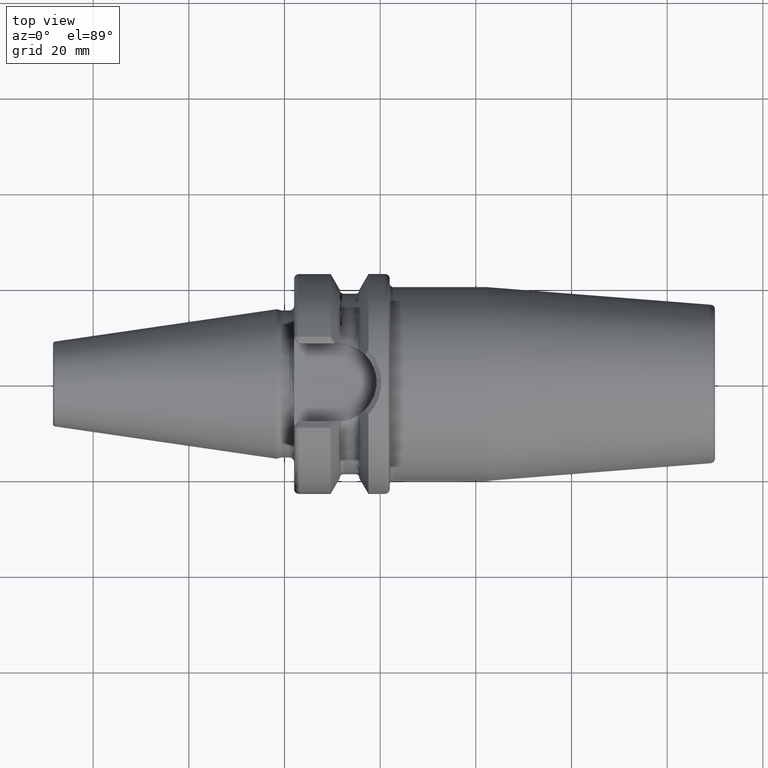
[diagram: clean part render]
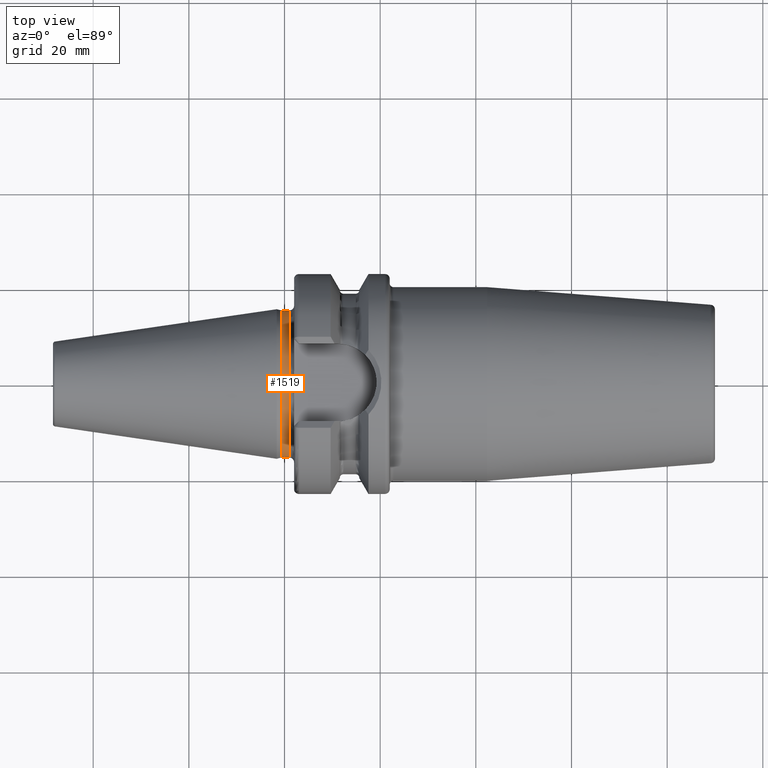
[diagram: same view with one face highlighted and labeled with its STEP entity id]
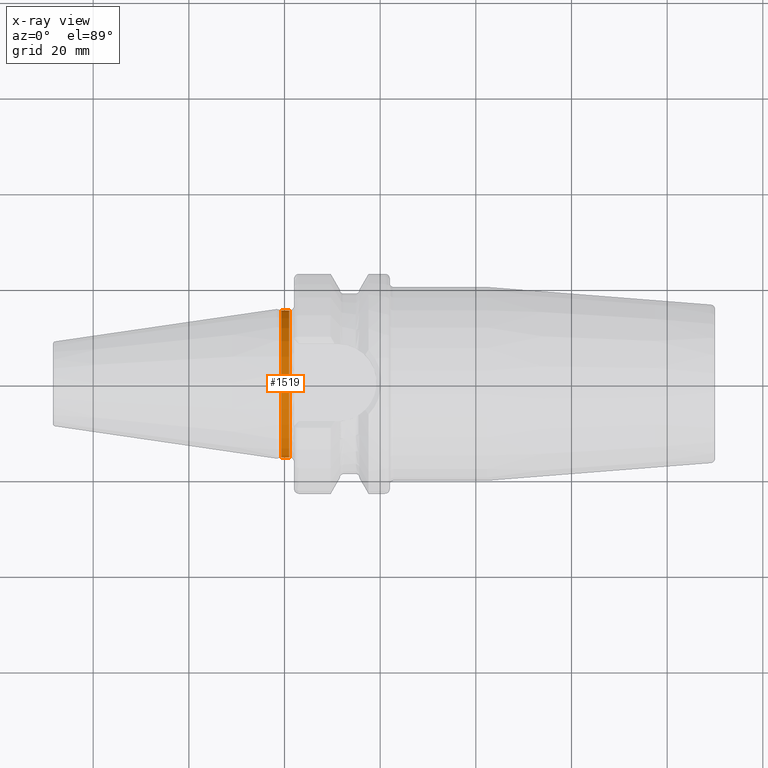
[diagram: x-ray of the same camera — body ghosted, the highlighted face saturated]
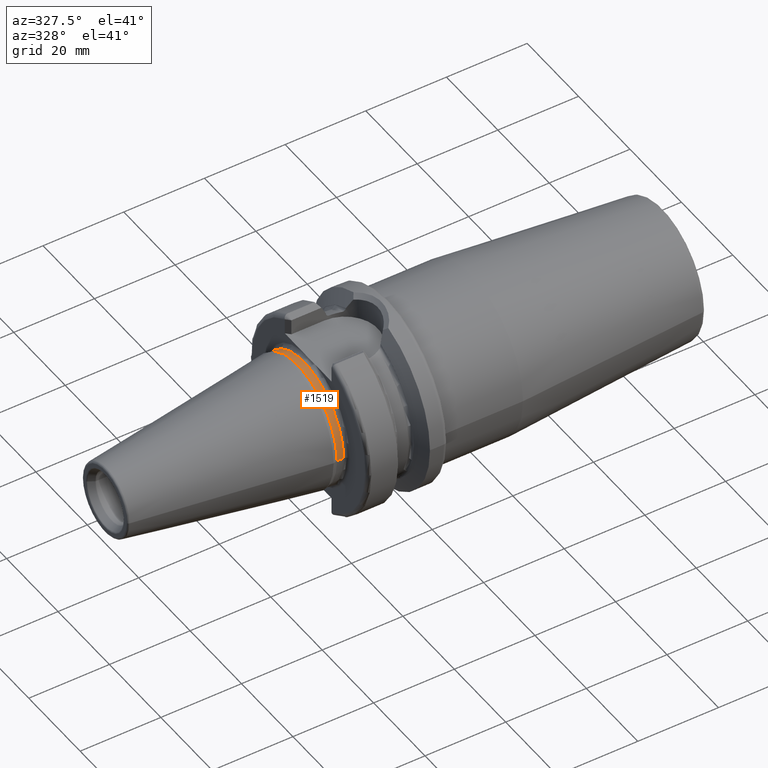
[diagram: same view with one face highlighted and labeled with its STEP entity id]
A machine part, top view. The second image highlights one B-rep face of the part: STEP entity #1519.
The next image is the same camera in x-ray: the body ghosted, the highlighted face saturated — about 0% of this face is hidden behind the body in this view.
A second angle (auxiliary view) of the same face is appended — the face is thin or edge-on in the first view.
In plain terms, the highlighted cylindrical surface (partial cylindrical patch) has radius 15.375 mm, axis along (1, 0, 0).
Its self-contained STEP definition (entity closure, byte-faithful):
#73=CARTESIAN_POINT('',(-6.5E-1,0.E0,0.E0));
#74=DIRECTION('',(1.E0,0.E0,0.E0));
#75=DIRECTION('',(0.E0,1.E0,0.E0));
#76=AXIS2_PLACEMENT_3D('',#73,#74,#75);
#78=CARTESIAN_POINT('',(1.E0,0.E0,0.E0));
#79=DIRECTION('',(1.E0,0.E0,0.E0));
#80=DIRECTION('',(0.E0,1.E0,0.E0));
#81=AXIS2_PLACEMENT_3D('',#78,#79,#80);
#83=DIRECTION('',(-1.E0,0.E0,0.E0));
#84=VECTOR('',#83,1.65E0);
#85=CARTESIAN_POINT('',(1.E0,1.5375E1,0.E0));
#86=LINE('',#85,#84);
#87=DIRECTION('',(-1.E0,0.E0,0.E0));
#88=VECTOR('',#87,1.65E0);
#89=CARTESIAN_POINT('',(1.E0,-1.5375E1,0.E0));
#90=LINE('',#89,#88);
#1229=CARTESIAN_POINT('',(1.E0,1.5375E1,0.E0));
#1231=VERTEX_POINT('',#1229);
#1232=CARTESIAN_POINT('',(-6.5E-1,1.5375E1,0.E0));
#1233=VERTEX_POINT('',#1232);
#1235=CARTESIAN_POINT('',(1.E0,-1.5375E1,0.E0));
#1237=VERTEX_POINT('',#1235);
#1238=CARTESIAN_POINT('',(-6.5E-1,-1.5375E1,0.E0));
#1239=VERTEX_POINT('',#1238);
#1505=CARTESIAN_POINT('',(-5.192E1,0.E0,0.E0));
#1506=DIRECTION('',(1.E0,0.E0,0.E0));
#1507=DIRECTION('',(0.E0,-1.E0,0.E0));
#1508=AXIS2_PLACEMENT_3D('',#1505,#1506,#1507);
#1509=CYLINDRICAL_SURFACE('',#1508,1.5375E1);
#1511=ORIENTED_EDGE('',*,*,#1510,.F.);
#1513=ORIENTED_EDGE('',*,*,#1512,.T.);
#1515=ORIENTED_EDGE('',*,*,#1514,.T.);
#1516=ORIENTED_EDGE('',*,*,#1498,.F.);
#1517=EDGE_LOOP('',(#1511,#1513,#1515,#1516));
#1518=FACE_OUTER_BOUND('',#1517,.F.);
#1519=ADVANCED_FACE('',(#1518),#1509,.T.);
#77=CIRCLE('',#76,1.5375E1);
#82=CIRCLE('',#81,1.5375E1);
#1498=EDGE_CURVE('',#1233,#1239,#77,.T.);
#1510=EDGE_CURVE('',#1231,#1233,#86,.T.);
#1512=EDGE_CURVE('',#1231,#1237,#82,.T.);
#1514=EDGE_CURVE('',#1237,#1239,#90,.T.);